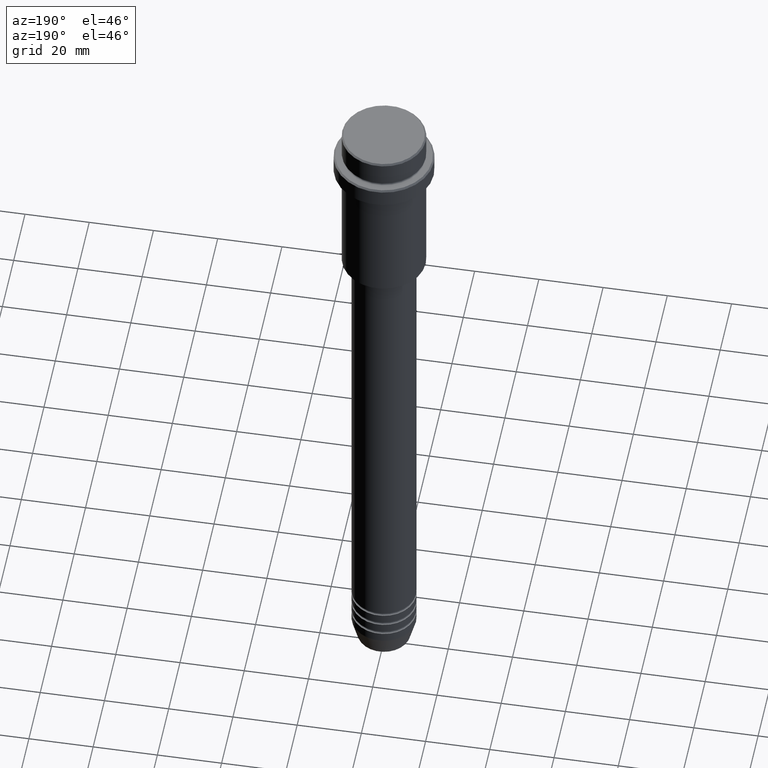
[diagram: clean part render]
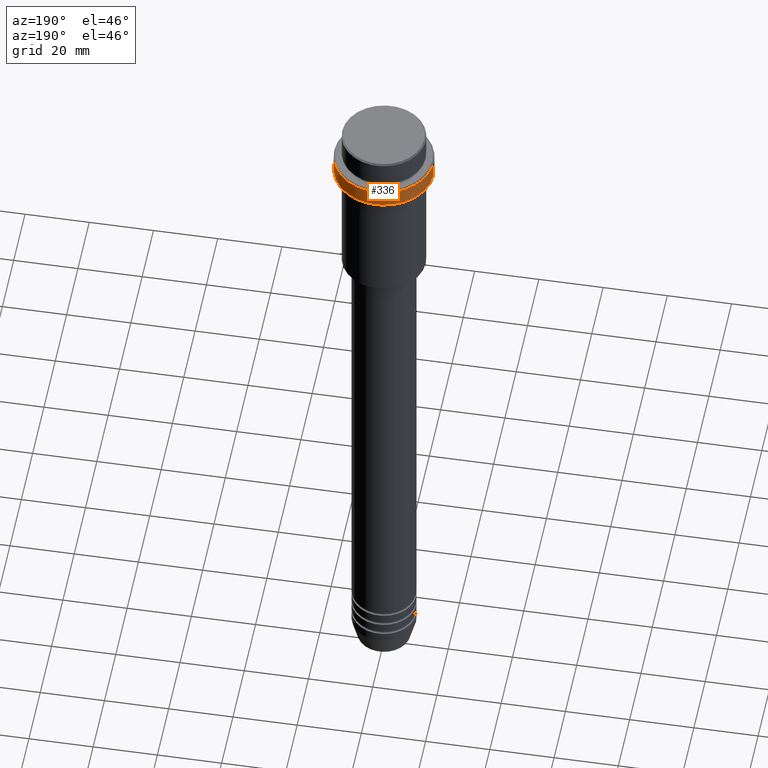
[diagram: same view with one face highlighted and labeled with its STEP entity id]
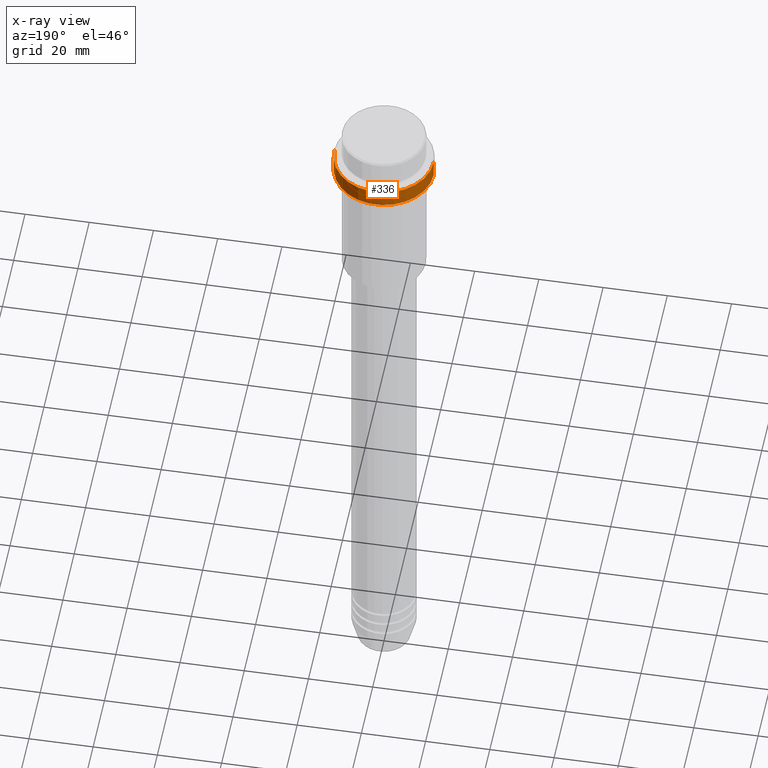
[diagram: x-ray of the same camera — body ghosted, the highlighted face saturated]
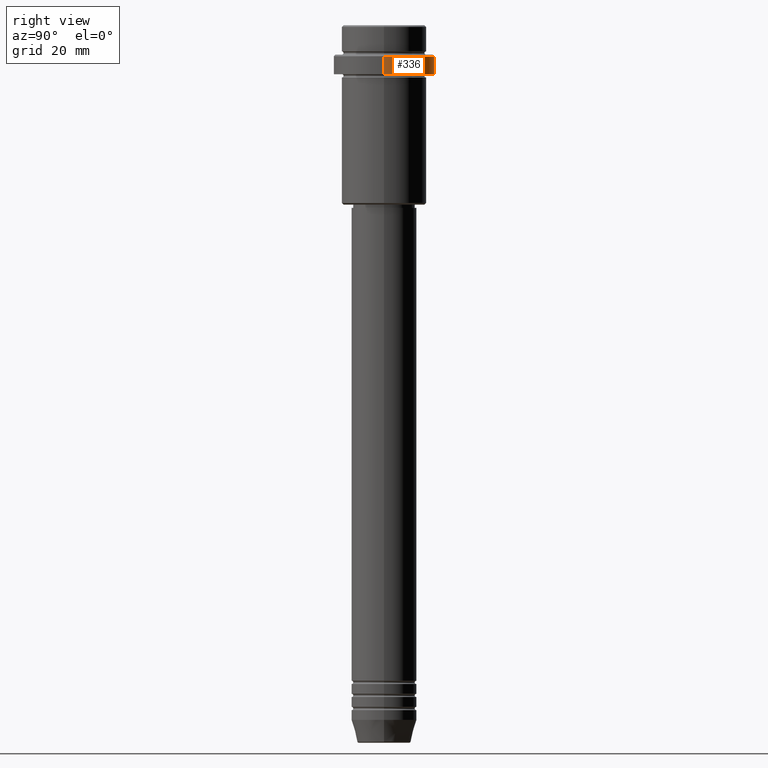
[diagram: same view with one face highlighted and labeled with its STEP entity id]
A machine part, auxiliary view. The second image highlights one B-rep face of the part: STEP entity #336.
The next image is the same camera in x-ray: the body ghosted, the highlighted face saturated — about 0% of this face is hidden behind the body in this view.
A second angle (right view) of the same face is appended — the face is thin or edge-on in the first view.
In plain terms, the highlighted cylindrical surface (partial cylindrical patch) has radius 15.5 mm, axis along (-0, -0, 1).
Its self-contained STEP definition (entity closure, byte-faithful):
#13 = EDGE_CURVE ( 'NONE', #166, #1316, #460, .T. ) ;
#57 = EDGE_CURVE ( 'NONE', #90, #166, #1299, .T. ) ;
#79 = CARTESIAN_POINT ( 'NONE',  ( 0.000000000000000000, 0.000000000000000000, 0.000000000000000000 ) ) ;
#87 = ORIENTED_EDGE ( 'NONE', *, *, #1317, .T. ) ;
#90 = VERTEX_POINT ( 'NONE', #555 ) ;
#166 = VERTEX_POINT ( 'NONE', #1269 ) ;
#189 = CYLINDRICAL_SURFACE ( 'NONE', #1012, 15.50000000000000000 ) ;
#214 = EDGE_CURVE ( 'NONE', #310, #1316, #905, .T. ) ;
#310 = VERTEX_POINT ( 'NONE', #1231 ) ;
#325 = CIRCLE ( 'NONE', #1242, 15.50000000000000000 ) ;
#336 = ADVANCED_FACE ( 'NONE', ( #1021 ), #189, .T. ) ;
#460 = CIRCLE ( 'NONE', #737, 15.50000000000000000 ) ;
#477 = CARTESIAN_POINT ( 'NONE',  ( 15.50000000000000000, 0.000000000000000000, -9.500000000000012434 ) ) ;
#498 = ORIENTED_EDGE ( 'NONE', *, *, #214, .F. ) ;
#555 = CARTESIAN_POINT ( 'NONE',  ( -15.50000000000000000, 1.898202538678397557E-15, -15.00000000000000000 ) ) ;
#557 = ORIENTED_EDGE ( 'NONE', *, *, #57, .T. ) ;
#584 = DIRECTION ( 'NONE',  ( 1.000000000000000000, 0.000000000000000000, 0.000000000000000000 ) ) ;
#588 = ORIENTED_EDGE ( 'NONE', *, *, #13, .T. ) ;
#642 = VECTOR ( 'NONE', #747, 1000.000000000000000 ) ;
#710 = VECTOR ( 'NONE', #1238, 1000.000000000000000 ) ;
#737 = AXIS2_PLACEMENT_3D ( 'NONE', #1067, #1282, #1156 ) ;
#747 = DIRECTION ( 'NONE',  ( -0.000000000000000000, -0.000000000000000000, 1.000000000000000000 ) ) ;
#751 = DIRECTION ( 'NONE',  ( 1.000000000000000000, 0.000000000000000000, 0.000000000000000000 ) ) ;
#754 = CARTESIAN_POINT ( 'NONE',  ( -15.50000000000000000, 1.898202538678397557E-15, 0.000000000000000000 ) ) ;
#810 = CARTESIAN_POINT ( 'NONE',  ( 0.000000000000000000, 0.000000000000000000, -15.00000000000000000 ) ) ;
#905 = LINE ( 'NONE', #1341, #710 ) ;
#1012 = AXIS2_PLACEMENT_3D ( 'NONE', #79, #1401, #751 ) ;
#1021 = FACE_OUTER_BOUND ( 'NONE', #1094, .T. ) ;
#1067 = CARTESIAN_POINT ( 'NONE',  ( 0.000000000000000000, 0.000000000000000000, -9.500000000000012434 ) ) ;
#1094 = EDGE_LOOP ( 'NONE', ( #87, #557, #588, #498 ) ) ;
#1131 = DIRECTION ( 'NONE',  ( -0.000000000000000000, -0.000000000000000000, 1.000000000000000000 ) ) ;
#1156 = DIRECTION ( 'NONE',  ( 1.000000000000000000, 0.000000000000000000, 0.000000000000000000 ) ) ;
#1231 = CARTESIAN_POINT ( 'NONE',  ( 15.50000000000000000, 0.000000000000000000, -15.00000000000000000 ) ) ;
#1238 = DIRECTION ( 'NONE',  ( -0.000000000000000000, -0.000000000000000000, 1.000000000000000000 ) ) ;
#1242 = AXIS2_PLACEMENT_3D ( 'NONE', #810, #1131, #584 ) ;
#1269 = CARTESIAN_POINT ( 'NONE',  ( -15.50000000000000000, 1.898202538678397557E-15, -9.500000000000012434 ) ) ;
#1282 = DIRECTION ( 'NONE',  ( 0.000000000000000000, 0.000000000000000000, -1.000000000000000000 ) ) ;
#1299 = LINE ( 'NONE', #754, #642 ) ;
#1316 = VERTEX_POINT ( 'NONE', #477 ) ;
#1317 = EDGE_CURVE ( 'NONE', #310, #90, #325, .T. ) ;
#1341 = CARTESIAN_POINT ( 'NONE',  ( 15.50000000000000000, 0.000000000000000000, 0.000000000000000000 ) ) ;
#1401 = DIRECTION ( 'NONE',  ( -0.000000000000000000, -0.000000000000000000, 1.000000000000000000 ) ) ;